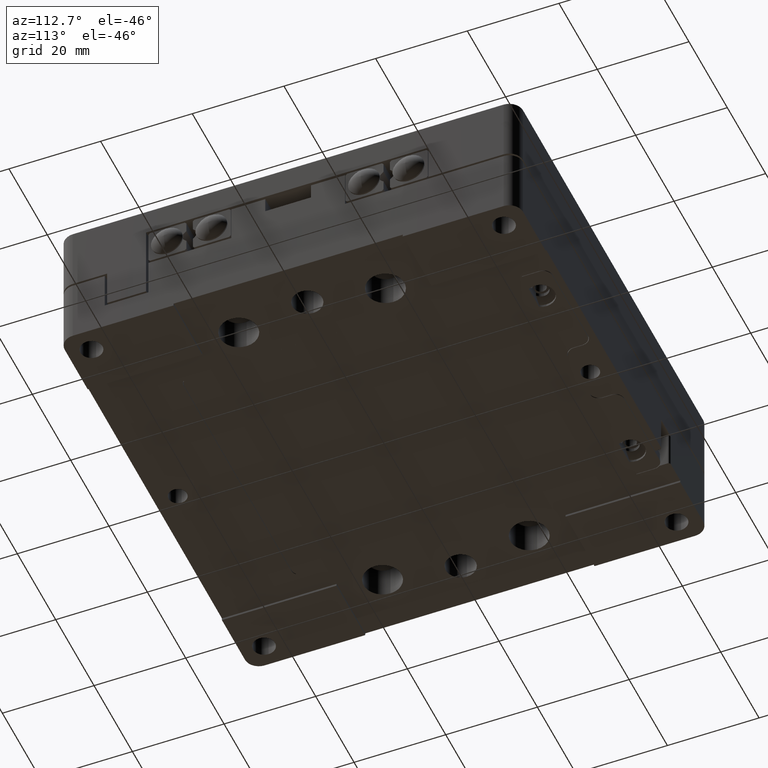
[diagram: clean part render]
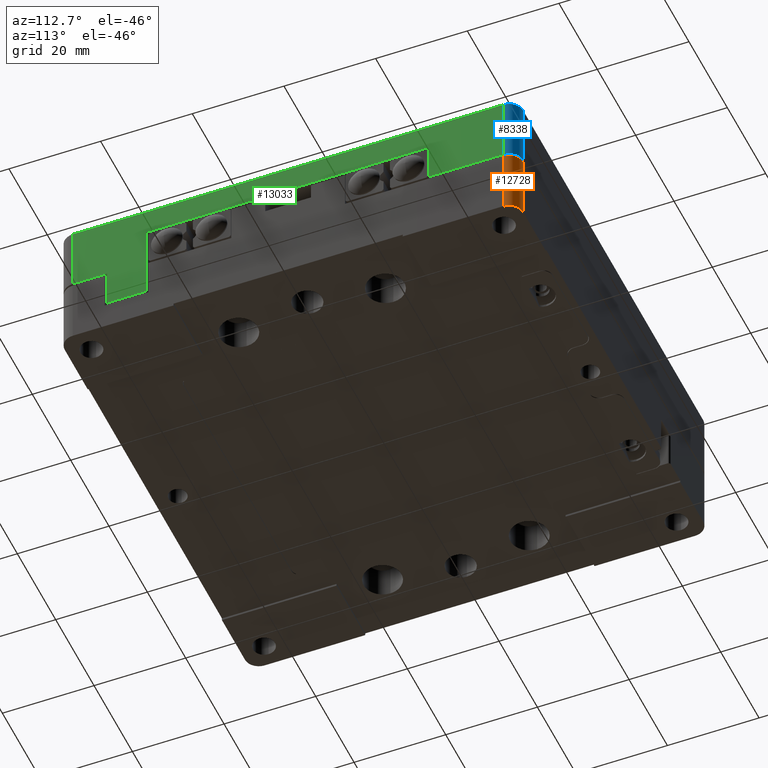
[diagram: same view with three faces highlighted in distinct colors, each labeled with its STEP entity id]
A machine part, auxiliary view with three faces highlighted in distinct colors.
Their STEP definitions:

[orange] entity #12728 — the highlighted cylindrical surface (edge-blend (fillet) strip) has radius 3 mm, axis along (0, 0, 1).
#182 = ORIENTED_EDGE ( 'NONE', *, *, #7906, .T. ) ;
#201 = CARTESIAN_POINT ( 'NONE',  ( 50.00000000000000000, 47.00000000000000000, 0.000000000000000000 ) ) ;
#541 = LINE ( 'NONE', #26119, #14412 ) ;
#1560 = CARTESIAN_POINT ( 'NONE',  ( 47.00000000000000000, 47.00000000000000000, 0.000000000000000000 ) ) ;
#2537 = DIRECTION ( 'NONE',  ( 0.000000000000000000, 0.000000000000000000, -1.000000000000000000 ) ) ;
#2674 = DIRECTION ( 'NONE',  ( 1.000000000000000000, 0.000000000000000000, 0.000000000000000000 ) ) ;
#2850 = CYLINDRICAL_SURFACE ( 'NONE', #13531, 3.000000000000002665 ) ;
#3572 = DIRECTION ( 'NONE',  ( 0.000000000000000000, 0.000000000000000000, 1.000000000000000000 ) ) ;
#4339 = VECTOR ( 'NONE', #3572, 1000.000000000000000 ) ;
#5930 = EDGE_CURVE ( 'NONE', #7954, #11963, #16285, .T. ) ;
#7206 = AXIS2_PLACEMENT_3D ( 'NONE', #15389, #2537, #2674 ) ;
#7906 = EDGE_CURVE ( 'NONE', #11638, #11963, #24997, .T. ) ;
#7954 = VERTEX_POINT ( 'NONE', #26864 ) ;
#8051 = ORIENTED_EDGE ( 'NONE', *, *, #5930, .F. ) ;
#8515 = ORIENTED_EDGE ( 'NONE', *, *, #14146, .F. ) ;
#10241 = AXIS2_PLACEMENT_3D ( 'NONE', #1560, #15948, #14118 ) ;
#11375 = EDGE_CURVE ( 'NONE', #14891, #7954, #13004, .T. ) ;
#11638 = VERTEX_POINT ( 'NONE', #18822 ) ;
#11963 = VERTEX_POINT ( 'NONE', #201 ) ;
#12100 = ORIENTED_EDGE ( 'NONE', *, *, #11375, .F. ) ;
#12728 = ADVANCED_FACE ( 'NONE', ( #26213 ), #2850, .T. ) ;
#13004 = CIRCLE ( 'NONE', #7206, 3.000000000000002665 ) ;
#13531 = AXIS2_PLACEMENT_3D ( 'NONE', #23977, #26352, #17386 ) ;
#13743 = DIRECTION ( 'NONE',  ( 0.000000000000000000, 0.000000000000000000, -1.000000000000000000 ) ) ;
#14118 = DIRECTION ( 'NONE',  ( 1.000000000000000000, 0.000000000000000000, 0.000000000000000000 ) ) ;
#14146 = EDGE_CURVE ( 'NONE', #11638, #14891, #541, .T. ) ;
#14412 = VECTOR ( 'NONE', #13743, 1000.000000000000000 ) ;
#14891 = VERTEX_POINT ( 'NONE', #17327 ) ;
#15389 = CARTESIAN_POINT ( 'NONE',  ( 47.00000000000000000, 47.00000000000000000, -14.50000000000000000 ) ) ;
#15898 = EDGE_LOOP ( 'NONE', ( #8515, #182, #8051, #12100 ) ) ;
#15948 = DIRECTION ( 'NONE',  ( 0.000000000000000000, 0.000000000000000000, -1.000000000000000000 ) ) ;
#16285 = LINE ( 'NONE', #22737, #4339 ) ;
#17327 = CARTESIAN_POINT ( 'NONE',  ( 47.00000000000000000, 50.00000000000000000, -14.50000000000000000 ) ) ;
#17386 = DIRECTION ( 'NONE',  ( 1.000000000000000000, 0.000000000000000000, 0.000000000000000000 ) ) ;
#18822 = CARTESIAN_POINT ( 'NONE',  ( 47.00000000000000000, 50.00000000000000000, 0.000000000000000000 ) ) ;
#22737 = CARTESIAN_POINT ( 'NONE',  ( 50.00000000000000000, 47.00000000000000000, 0.000000000000000000 ) ) ;
#23977 = CARTESIAN_POINT ( 'NONE',  ( 47.00000000000000000, 47.00000000000000000, -44.22207999999999828 ) ) ;
#24997 = CIRCLE ( 'NONE', #10241, 3.000000000000002665 ) ;
#26119 = CARTESIAN_POINT ( 'NONE',  ( 47.00000000000000000, 50.00000000000000000, -14.50000000000000000 ) ) ;
#26213 = FACE_OUTER_BOUND ( 'NONE', #15898, .T. ) ;
#26352 = DIRECTION ( 'NONE',  ( 0.000000000000000000, 0.000000000000000000, 1.000000000000000000 ) ) ;
#26864 = CARTESIAN_POINT ( 'NONE',  ( 50.00000000000000000, 47.00000000000000000, -14.50000000000000000 ) ) ;

[blue] entity #8338 — the highlighted cylindrical surface (edge-blend (fillet) strip) has radius 3 mm, axis along (0, 0, 1).
#28 = CYLINDRICAL_SURFACE ( 'NONE', #2676, 3.000000000000002665 ) ;
#2600 = LINE ( 'NONE', #19650, #21002 ) ;
#2676 = AXIS2_PLACEMENT_3D ( 'NONE', #3785, #12296, #20849 ) ;
#3092 = DIRECTION ( 'NONE',  ( -1.000000000000000000, 0.000000000000000000, 0.000000000000000000 ) ) ;
#3785 = CARTESIAN_POINT ( 'NONE',  ( 47.00000000000000000, 47.00000000000000000, -19.05400000000000205 ) ) ;
#4259 = CARTESIAN_POINT ( 'NONE',  ( 46.99999907418980172, 50.00000000000840572, 14.89999999994888036 ) ) ;
#4913 = CIRCLE ( 'NONE', #14695, 3.000000000000002665 ) ;
#6107 = DIRECTION ( 'NONE',  ( 0.000000000000000000, 0.000000000000000000, -1.000000000000000000 ) ) ;
#6343 = CIRCLE ( 'NONE', #11711, 3.000000000000002665 ) ;
#8306 = EDGE_CURVE ( 'NONE', #14270, #8940, #4913, .T. ) ;
#8338 = ADVANCED_FACE ( 'NONE', ( #12561 ), #28, .T. ) ;
#8542 = ORIENTED_EDGE ( 'NONE', *, *, #12141, .F. ) ;
#8940 = VERTEX_POINT ( 'NONE', #9050 ) ;
#9050 = CARTESIAN_POINT ( 'NONE',  ( 47.00000000000000000, 50.00000000000000000, 0.5000000000000000000 ) ) ;
#10544 = EDGE_CURVE ( 'NONE', #8940, #25268, #2600, .T. ) ;
#11611 = LINE ( 'NONE', #26863, #20646 ) ;
#11711 = AXIS2_PLACEMENT_3D ( 'NONE', #14117, #6107, #3092 ) ;
#11934 = EDGE_LOOP ( 'NONE', ( #16059, #18035, #8542, #14278 ) ) ;
#12029 = EDGE_CURVE ( 'NONE', #25268, #26245, #6343, .T. ) ;
#12141 = EDGE_CURVE ( 'NONE', #14270, #26245, #11611, .T. ) ;
#12296 = DIRECTION ( 'NONE',  ( 0.000000000000000000, 0.000000000000000000, 1.000000000000000000 ) ) ;
#12561 = FACE_OUTER_BOUND ( 'NONE', #11934, .T. ) ;
#14117 = CARTESIAN_POINT ( 'NONE',  ( 47.00000000000000000, 47.00000000000000000, 14.89999999991505852 ) ) ;
#14270 = VERTEX_POINT ( 'NONE', #22423 ) ;
#14278 = ORIENTED_EDGE ( 'NONE', *, *, #8306, .T. ) ;
#14695 = AXIS2_PLACEMENT_3D ( 'NONE', #25597, #27553, #18872 ) ;
#16059 = ORIENTED_EDGE ( 'NONE', *, *, #10544, .T. ) ;
#18035 = ORIENTED_EDGE ( 'NONE', *, *, #12029, .T. ) ;
#18872 = DIRECTION ( 'NONE',  ( 1.000000000000000000, 0.000000000000000000, 0.000000000000000000 ) ) ;
#19650 = CARTESIAN_POINT ( 'NONE',  ( 47.00000000000000000, 50.00000000000000000, -19.05400000000000205 ) ) ;
#20419 = DIRECTION ( 'NONE',  ( 0.000000000000000000, 0.000000000000000000, 1.000000000000000000 ) ) ;
#20646 = VECTOR ( 'NONE', #20419, 1000.000000000000000 ) ;
#20849 = DIRECTION ( 'NONE',  ( 1.000000000000000000, 0.000000000000000000, 0.000000000000000000 ) ) ;
#21002 = VECTOR ( 'NONE', #22040, 1000.000000000000000 ) ;
#22040 = DIRECTION ( 'NONE',  ( 0.000000000000000000, 0.000000000000000000, 1.000000000000000000 ) ) ;
#22423 = CARTESIAN_POINT ( 'NONE',  ( 50.00000000000000000, 47.00000000000000000, 0.5000000000000000000 ) ) ;
#25268 = VERTEX_POINT ( 'NONE', #4259 ) ;
#25597 = CARTESIAN_POINT ( 'NONE',  ( 47.00000000000000000, 47.00000000000000000, 0.5000000000000000000 ) ) ;
#25852 = CARTESIAN_POINT ( 'NONE',  ( 50.00000000000810019, 46.99999869465610658, 14.89999999994888036 ) ) ;
#26245 = VERTEX_POINT ( 'NONE', #25852 ) ;
#26863 = CARTESIAN_POINT ( 'NONE',  ( 50.00000000000000000, 47.00000000000000000, 0.000000000000000000 ) ) ;
#27553 = DIRECTION ( 'NONE',  ( 0.000000000000000000, 0.000000000000000000, 1.000000000000000000 ) ) ;

[green] entity #13033 — the highlighted planar face has unit normal (1, 0, 0).
#183 = LINE ( 'NONE', #23788, #1851 ) ;
#317 = ORIENTED_EDGE ( 'NONE', *, *, #6342, .T. ) ;
#735 = CARTESIAN_POINT ( 'NONE',  ( 50.00000000000000000, -31.00000000000000000, 9.000000000000000000 ) ) ;
#989 = DIRECTION ( 'NONE',  ( 0.000000000000000000, 1.000000000000000000, 0.000000000000000000 ) ) ;
#1699 = VECTOR ( 'NONE', #25737, 1000.000000000000000 ) ;
#1851 = VECTOR ( 'NONE', #13001, 1000.000000000000000 ) ;
#2175 = LINE ( 'NONE', #24746, #4423 ) ;
#2594 = CARTESIAN_POINT ( 'NONE',  ( 50.00000000000000000, -31.00000000000000000, -8.000000000000000000 ) ) ;
#3198 = LINE ( 'NONE', #16185, #15069 ) ;
#4423 = VECTOR ( 'NONE', #5580, 1000.000000000000000 ) ;
#5580 = DIRECTION ( 'NONE',  ( 0.000000000000000000, -1.000000000000000000, 0.000000000000000000 ) ) ;
#6342 = EDGE_CURVE ( 'NONE', #17368, #18793, #13608, .T. ) ;
#6442 = DIRECTION ( 'NONE',  ( 0.000000000000000000, 0.000000000000000000, -1.000000000000000000 ) ) ;
#7420 = EDGE_CURVE ( 'NONE', #16082, #9689, #2175, .T. ) ;
#7844 = DIRECTION ( 'NONE',  ( 0.000000000000000000, 0.000000000000000000, -1.000000000000000000 ) ) ;
#8114 = ORIENTED_EDGE ( 'NONE', *, *, #26175, .F. ) ;
#8248 = ORIENTED_EDGE ( 'NONE', *, *, #7420, .F. ) ;
#8405 = CARTESIAN_POINT ( 'NONE',  ( 50.00000000000000000, 0.000000000000000000, 0.000000000000000000 ) ) ;
#8425 = VERTEX_POINT ( 'NONE', #8949 ) ;
#8691 = PLANE ( 'NONE',  #18446 ) ;
#8949 = CARTESIAN_POINT ( 'NONE',  ( 50.00000000000000000, 30.59999999999999787, 0.5000000000000000000 ) ) ;
#9663 = LINE ( 'NONE', #16881, #23588 ) ;
#9689 = VERTEX_POINT ( 'NONE', #735 ) ;
#9926 = CARTESIAN_POINT ( 'NONE',  ( 50.00000000000000000, -39.50000000000000000, 0.000000000000000000 ) ) ;
#10005 = CARTESIAN_POINT ( 'NONE',  ( 50.00000000000000000, -39.50000000000000000, -8.000000000000000000 ) ) ;
#10232 = VERTEX_POINT ( 'NONE', #26548 ) ;
#10233 = EDGE_CURVE ( 'NONE', #8425, #14270, #11569, .T. ) ;
#10336 = LINE ( 'NONE', #9926, #24591 ) ;
#10561 = CARTESIAN_POINT ( 'NONE',  ( 50.00000000001700329, -46.99999992464999821, 14.89999999998300062 ) ) ;
#11382 = CARTESIAN_POINT ( 'NONE',  ( 50.00000000000000000, 0.000000000000000000, -8.000000000000000000 ) ) ;
#11440 = EDGE_CURVE ( 'NONE', #26245, #18819, #183, .T. ) ;
#11569 = LINE ( 'NONE', #11976, #18750 ) ;
#11611 = LINE ( 'NONE', #26863, #20646 ) ;
#11659 = ORIENTED_EDGE ( 'NONE', *, *, #12141, .T. ) ;
#11976 = CARTESIAN_POINT ( 'NONE',  ( 50.00000000000000000, 0.000000000000000000, 0.5000000000000000000 ) ) ;
#12141 = EDGE_CURVE ( 'NONE', #14270, #26245, #11611, .T. ) ;
#12642 = ORIENTED_EDGE ( 'NONE', *, *, #19696, .T. ) ;
#12871 = FACE_OUTER_BOUND ( 'NONE', #22160, .T. ) ;
#13001 = DIRECTION ( 'NONE',  ( 0.000000000000000000, -1.000000000000000000, 0.000000000000000000 ) ) ;
#13033 = ADVANCED_FACE ( 'NONE', ( #12871 ), #8691, .T. ) ;
#13284 = VECTOR ( 'NONE', #26358, 1000.000000000000000 ) ;
#13608 = LINE ( 'NONE', #11382, #13284 ) ;
#14270 = VERTEX_POINT ( 'NONE', #22423 ) ;
#14374 = ORIENTED_EDGE ( 'NONE', *, *, #16646, .T. ) ;
#15069 = VECTOR ( 'NONE', #989, 1000.000000000000000 ) ;
#16082 = VERTEX_POINT ( 'NONE', #24082 ) ;
#16185 = CARTESIAN_POINT ( 'NONE',  ( 50.00000000000000000, 0.000000000000000000, 0.5000000000000000000 ) ) ;
#16646 = EDGE_CURVE ( 'NONE', #10232, #17368, #10336, .T. ) ;
#16881 = CARTESIAN_POINT ( 'NONE',  ( 50.00000000000000000, -31.00000000000000000, 0.5000000000000000000 ) ) ;
#17048 = LINE ( 'NONE', #23648, #27399 ) ;
#17205 = DIRECTION ( 'NONE',  ( 0.000000000000000000, 1.000000000000000000, 0.000000000000000000 ) ) ;
#17368 = VERTEX_POINT ( 'NONE', #10005 ) ;
#17681 = VERTEX_POINT ( 'NONE', #22023 ) ;
#18446 = AXIS2_PLACEMENT_3D ( 'NONE', #8405, #18766, #17205 ) ;
#18547 = DIRECTION ( 'NONE',  ( 0.000000000000000000, 1.000000000000000000, 0.000000000000000000 ) ) ;
#18750 = VECTOR ( 'NONE', #18547, 1000.000000000000000 ) ;
#18766 = DIRECTION ( 'NONE',  ( 1.000000000000000000, 0.000000000000000000, 0.000000000000000000 ) ) ;
#18793 = VERTEX_POINT ( 'NONE', #2594 ) ;
#18819 = VERTEX_POINT ( 'NONE', #10561 ) ;
#19120 = ORIENTED_EDGE ( 'NONE', *, *, #11440, .T. ) ;
#19696 = EDGE_CURVE ( 'NONE', #16082, #8425, #17048, .T. ) ;
#19868 = ORIENTED_EDGE ( 'NONE', *, *, #10233, .T. ) ;
#20294 = ORIENTED_EDGE ( 'NONE', *, *, #24522, .T. ) ;
#20419 = DIRECTION ( 'NONE',  ( 0.000000000000000000, 0.000000000000000000, 1.000000000000000000 ) ) ;
#20646 = VECTOR ( 'NONE', #20419, 1000.000000000000000 ) ;
#20706 = DIRECTION ( 'NONE',  ( 0.000000000000000000, 0.000000000000000000, -1.000000000000000000 ) ) ;
#22023 = CARTESIAN_POINT ( 'NONE',  ( 50.00000000000000000, -46.99999869438499900, 0.5000000000000000000 ) ) ;
#22160 = EDGE_LOOP ( 'NONE', ( #8248, #12642, #19868, #11659, #19120, #25674, #20294, #14374, #317, #8114 ) ) ;
#22423 = CARTESIAN_POINT ( 'NONE',  ( 50.00000000000000000, 47.00000000000000000, 0.5000000000000000000 ) ) ;
#23490 = LINE ( 'NONE', #23770, #1699 ) ;
#23588 = VECTOR ( 'NONE', #7844, 1000.000000000000000 ) ;
#23648 = CARTESIAN_POINT ( 'NONE',  ( 50.00000000000000000, 30.59999999999999787, 0.000000000000000000 ) ) ;
#23770 = CARTESIAN_POINT ( 'NONE',  ( 50.00000000000000000, -46.99999738876999800, 0.000000000000000000 ) ) ;
#23788 = CARTESIAN_POINT ( 'NONE',  ( 50.00000000000000000, 0.000000000000000000, 14.90000000000000036 ) ) ;
#24082 = CARTESIAN_POINT ( 'NONE',  ( 50.00000000000000000, 30.59999999999999787, 9.000000000000000000 ) ) ;
#24386 = EDGE_CURVE ( 'NONE', #18819, #17681, #23490, .T. ) ;
#24522 = EDGE_CURVE ( 'NONE', #17681, #10232, #3198, .T. ) ;
#24591 = VECTOR ( 'NONE', #20706, 1000.000000000000000 ) ;
#24746 = CARTESIAN_POINT ( 'NONE',  ( 50.00000000000000000, -50.00000000000000000, 9.000000000000000000 ) ) ;
#25674 = ORIENTED_EDGE ( 'NONE', *, *, #24386, .T. ) ;
#25737 = DIRECTION ( 'NONE',  ( 0.000000000000000000, 0.000000000000000000, -1.000000000000000000 ) ) ;
#25852 = CARTESIAN_POINT ( 'NONE',  ( 50.00000000000810019, 46.99999869465610658, 14.89999999994888036 ) ) ;
#26175 = EDGE_CURVE ( 'NONE', #9689, #18793, #9663, .T. ) ;
#26245 = VERTEX_POINT ( 'NONE', #25852 ) ;
#26358 = DIRECTION ( 'NONE',  ( 0.000000000000000000, 1.000000000000000000, 0.000000000000000000 ) ) ;
#26548 = CARTESIAN_POINT ( 'NONE',  ( 50.00000000000000000, -39.50000000000000000, 0.5000000000000000000 ) ) ;
#26863 = CARTESIAN_POINT ( 'NONE',  ( 50.00000000000000000, 47.00000000000000000, 0.000000000000000000 ) ) ;
#27399 = VECTOR ( 'NONE', #6442, 1000.000000000000000 ) ;